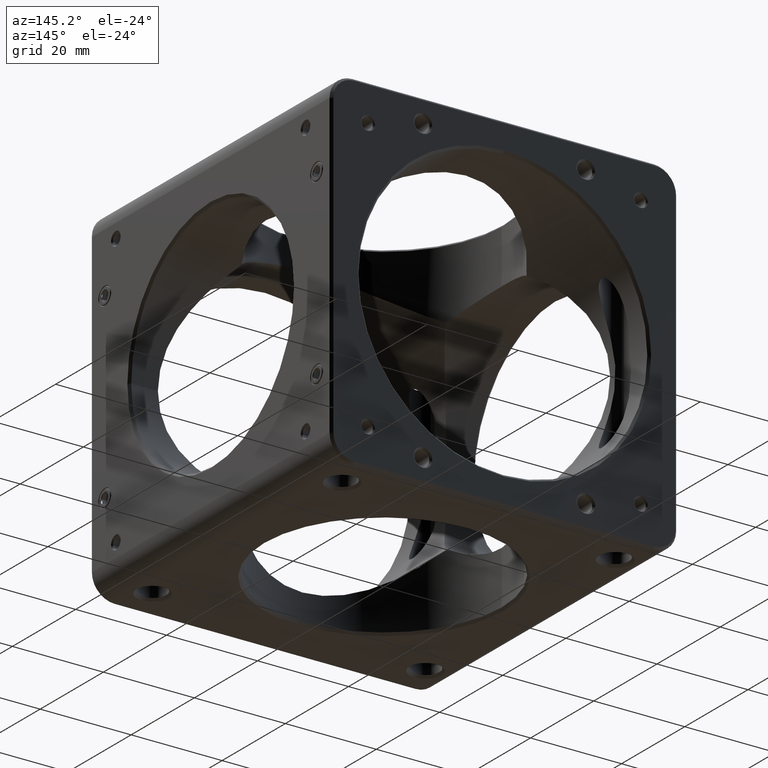
[diagram: clean part render]
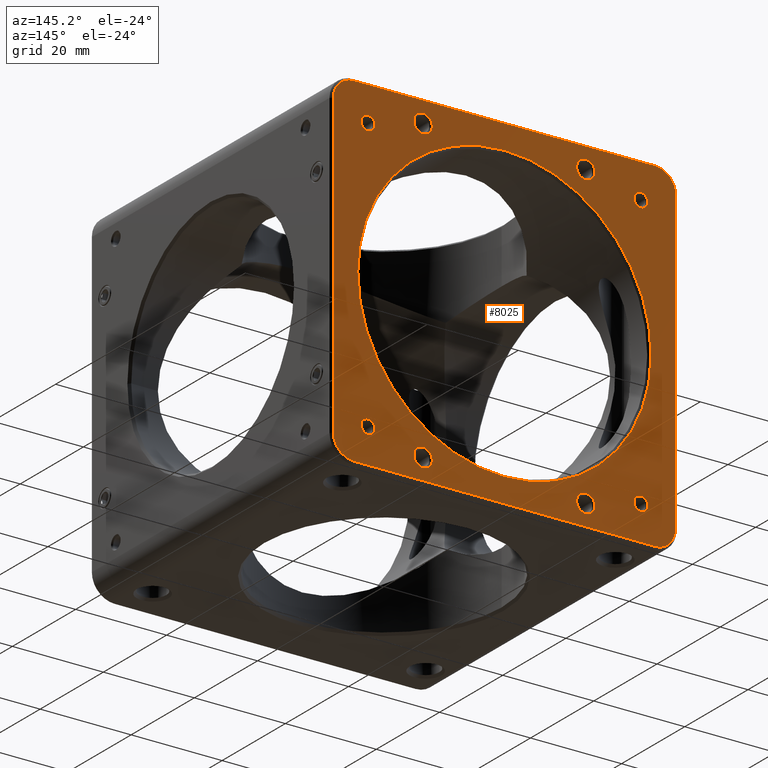
[diagram: same view with one face highlighted and labeled with its STEP entity id]
A machine part, auxiliary view. The second image highlights one B-rep face of the part: STEP entity #8025.
In plain terms, the highlighted planar face has unit normal (0, -1, 0).
Its self-contained STEP definition (entity closure, byte-faithful):
#117 = ORIENTED_EDGE ( 'NONE', *, *, #3140, .T. ) ;
#148 = CIRCLE ( 'NONE', #11900, 2.024999999999999023 ) ;
#151 = FACE_OUTER_BOUND ( 'NONE', #9998, .T. ) ;
#169 = CARTESIAN_POINT ( 'NONE',  ( -37.60000000000002274, 38.09999999999999432, 33.10000000000000142 ) ) ;
#219 = ORIENTED_EDGE ( 'NONE', *, *, #5787, .F. ) ;
#236 = DIRECTION ( 'NONE',  ( -0.0000000000000000000, 1.000000000000000000, -0.0000000000000000000 ) ) ;
#307 = FACE_BOUND ( 'NONE', #10692, .T. ) ;
#358 = EDGE_LOOP ( 'NONE', ( #10516, #8363 ) ) ;
#529 = EDGE_LOOP ( 'NONE', ( #219, #6433 ) ) ;
#550 = DIRECTION ( 'NONE',  ( -0.0000000000000000000, 1.000000000000000000, -0.0000000000000000000 ) ) ;
#597 = CARTESIAN_POINT ( 'NONE',  ( -33.10000000000000853, 38.09999999999999432, -33.10000000000000853 ) ) ;
#631 = DIRECTION ( 'NONE',  ( 0.0000000000000000000, 0.0000000000000000000, -1.000000000000000000 ) ) ;
#665 = EDGE_CURVE ( 'NONE', #3096, #7259, #2169, .T. ) ;
#700 = CARTESIAN_POINT ( 'NONE',  ( 33.09999999999999432, 38.09999999999999432, 33.10000000000000142 ) ) ;
#751 = FACE_BOUND ( 'NONE', #10626, .T. ) ;
#958 = ORIENTED_EDGE ( 'NONE', *, *, #7871, .F. ) ;
#971 = CIRCLE ( 'NONE', #1337, 1.525000000000002132 ) ;
#1030 = AXIS2_PLACEMENT_3D ( 'NONE', #8565, #1103, #9710 ) ;
#1103 = DIRECTION ( 'NONE',  ( -0.0000000000000000000, 1.000000000000000000, -0.0000000000000000000 ) ) ;
#1172 = EDGE_CURVE ( 'NONE', #9397, #4729, #10984, .T. ) ;
#1177 = DIRECTION ( 'NONE',  ( 0.0000000000000000000, 0.0000000000000000000, 1.000000000000000000 ) ) ;
#1294 = CARTESIAN_POINT ( 'NONE',  ( 33.09999999999999432, 38.09999999999999432, -37.60000000000002984 ) ) ;
#1337 = AXIS2_PLACEMENT_3D ( 'NONE', #2266, #236, #7762 ) ;
#1421 = DIRECTION ( 'NONE',  ( 0.0000000000000000000, -0.0000000000000000000, -1.000000000000000000 ) ) ;
#1431 = DIRECTION ( 'NONE',  ( -0.0000000000000000000, 1.000000000000000000, -0.0000000000000000000 ) ) ;
#1467 = DIRECTION ( 'NONE',  ( -0.0000000000000000000, 1.000000000000000000, -0.0000000000000000000 ) ) ;
#1497 = VERTEX_POINT ( 'NONE', #5947 ) ;
#1531 = DIRECTION ( 'NONE',  ( 0.0000000000000000000, 0.0000000000000000000, 1.000000000000000000 ) ) ;
#1572 = DIRECTION ( 'NONE',  ( -0.0000000000000000000, 1.000000000000000000, -0.0000000000000000000 ) ) ;
#1574 = CARTESIAN_POINT ( 'NONE',  ( -17.89999999999999503, 38.09999999999999432, -30.97500000000000142 ) ) ;
#1695 = DIRECTION ( 'NONE',  ( 0.0000000000000000000, 0.0000000000000000000, -1.000000000000000000 ) ) ;
#1711 = VERTEX_POINT ( 'NONE', #11321 ) ;
#1744 = VERTEX_POINT ( 'NONE', #7501 ) ;
#1900 = EDGE_CURVE ( 'NONE', #5807, #10269, #11570, .T. ) ;
#1917 = EDGE_CURVE ( 'NONE', #4729, #11224, #9063, .T. ) ;
#1941 = CIRCLE ( 'NONE', #7132, 2.024999999999999023 ) ;
#2009 = ORIENTED_EDGE ( 'NONE', *, *, #4751, .F. ) ;
#2139 = CARTESIAN_POINT ( 'NONE',  ( -30.00000000000013500, 38.09999999999988773, -31.52499999999999858 ) ) ;
#2169 = CIRCLE ( 'NONE', #3850, 1.524999999999998579 ) ;
#2176 = EDGE_CURVE ( 'NONE', #1497, #8735, #6208, .T. ) ;
#2248 = DIRECTION ( 'NONE',  ( 0.0000000000000000000, 0.0000000000000000000, 1.000000000000000000 ) ) ;
#2266 = CARTESIAN_POINT ( 'NONE',  ( -30.00000000000013500, 38.09999999999988773, 29.99999999999999645 ) ) ;
#2309 = CARTESIAN_POINT ( 'NONE',  ( 0.0000000000000000000, 38.09999999999999432, 6.938893903907228378E-15 ) ) ;
#2380 = DIRECTION ( 'NONE',  ( 0.0000000000000000000, 0.0000000000000000000, 1.000000000000000000 ) ) ;
#2567 = ORIENTED_EDGE ( 'NONE', *, *, #1900, .T. ) ;
#2594 = AXIS2_PLACEMENT_3D ( 'NONE', #2309, #3287, #8866 ) ;
#2638 = ORIENTED_EDGE ( 'NONE', *, *, #8445, .F. ) ;
#2642 = CIRCLE ( 'NONE', #9179, 4.500000000000024869 ) ;
#2643 = CARTESIAN_POINT ( 'NONE',  ( 0.0000000000000000000, 38.09999999999999432, 6.938893903907228378E-15 ) ) ;
#2896 = VECTOR ( 'NONE', #9607, 1000.000000000000000 ) ;
#2909 = AXIS2_PLACEMENT_3D ( 'NONE', #4348, #10993, #631 ) ;
#2938 = AXIS2_PLACEMENT_3D ( 'NONE', #7741, #8475, #2995 ) ;
#2961 = DIRECTION ( 'NONE',  ( -0.0000000000000000000, 1.000000000000000000, -0.0000000000000000000 ) ) ;
#2995 = DIRECTION ( 'NONE',  ( 0.0000000000000000000, 0.0000000000000000000, -1.000000000000000000 ) ) ;
#3089 = ORIENTED_EDGE ( 'NONE', *, *, #7173, .F. ) ;
#3096 = VERTEX_POINT ( 'NONE', #2139 ) ;
#3100 = EDGE_CURVE ( 'NONE', #9325, #8577, #971, .T. ) ;
#3110 = CARTESIAN_POINT ( 'NONE',  ( 17.90000000000000213, 38.09999999999999432, 30.97500000000000142 ) ) ;
#3140 = EDGE_CURVE ( 'NONE', #4917, #6473, #8171, .T. ) ;
#3287 = DIRECTION ( 'NONE',  ( 0.0000000000000000000, -1.000000000000000000, 0.0000000000000000000 ) ) ;
#3294 = VERTEX_POINT ( 'NONE', #8164 ) ;
#3310 = CARTESIAN_POINT ( 'NONE',  ( -30.00000000000013500, 38.09999999999988773, 29.99999999999999645 ) ) ;
#3341 = DIRECTION ( 'NONE',  ( 0.0000000000000000000, -1.000000000000000000, 0.0000000000000000000 ) ) ;
#3380 = AXIS2_PLACEMENT_3D ( 'NONE', #11806, #3341, #1421 ) ;
#3397 = VERTEX_POINT ( 'NONE', #1574 ) ;
#3451 = VERTEX_POINT ( 'NONE', #8487 ) ;
#3500 = CARTESIAN_POINT ( 'NONE',  ( -30.00000000000013500, 38.09999999999988773, -28.47500000000000497 ) ) ;
#3511 = AXIS2_PLACEMENT_3D ( 'NONE', #10005, #1431, #2380 ) ;
#3556 = CARTESIAN_POINT ( 'NONE',  ( 0.0000000000000000000, 38.09999999999999432, 32.25000000000007105 ) ) ;
#3850 = AXIS2_PLACEMENT_3D ( 'NONE', #7705, #2961, #1177 ) ;
#3977 = EDGE_CURVE ( 'NONE', #3294, #8947, #10209, .T. ) ;
#4146 = CARTESIAN_POINT ( 'NONE',  ( 29.99999999999985079, 38.10000000000011511, -30.00000000000001066 ) ) ;
#4160 = ORIENTED_EDGE ( 'NONE', *, *, #3977, .F. ) ;
#4164 = FACE_BOUND ( 'NONE', #11625, .T. ) ;
#4185 = ORIENTED_EDGE ( 'NONE', *, *, #5539, .T. ) ;
#4235 = DIRECTION ( 'NONE',  ( -0.0000000000000000000, 1.000000000000000000, -0.0000000000000000000 ) ) ;
#4251 = DIRECTION ( 'NONE',  ( -0.0000000000000000000, 1.000000000000000000, -0.0000000000000000000 ) ) ;
#4291 = EDGE_CURVE ( 'NONE', #1711, #8426, #8729, .T. ) ;
#4326 = CIRCLE ( 'NONE', #1030, 1.525000000000005462 ) ;
#4348 = CARTESIAN_POINT ( 'NONE',  ( 33.09999999999999432, 38.09999999999999432, -33.10000000000000853 ) ) ;
#4390 = DIRECTION ( 'NONE',  ( 0.0000000000000000000, 0.0000000000000000000, 1.000000000000000000 ) ) ;
#4659 = DIRECTION ( 'NONE',  ( 0.0000000000000000000, -1.000000000000000000, 0.0000000000000000000 ) ) ;
#4722 = DIRECTION ( 'NONE',  ( -1.000000000000000000, 0.0000000000000000000, 0.0000000000000000000 ) ) ;
#4729 = VERTEX_POINT ( 'NONE', #5442 ) ;
#4751 = EDGE_CURVE ( 'NONE', #3451, #3397, #11090, .T. ) ;
#4778 = DIRECTION ( 'NONE',  ( 0.0000000000000000000, 0.0000000000000000000, 1.000000000000000000 ) ) ;
#4801 = ORIENTED_EDGE ( 'NONE', *, *, #6846, .F. ) ;
#4832 = ORIENTED_EDGE ( 'NONE', *, *, #7098, .F. ) ;
#4917 = VERTEX_POINT ( 'NONE', #9526 ) ;
#5041 = FACE_BOUND ( 'NONE', #358, .T. ) ;
#5044 = CARTESIAN_POINT ( 'NONE',  ( 17.90000000000000213, 38.09999999999999432, 33.00000000000000000 ) ) ;
#5087 = DIRECTION ( 'NONE',  ( -0.0000000000000000000, 1.000000000000000000, -0.0000000000000000000 ) ) ;
#5220 = VERTEX_POINT ( 'NONE', #6237 ) ;
#5286 = CIRCLE ( 'NONE', #9751, 32.25000000000006395 ) ;
#5292 = DIRECTION ( 'NONE',  ( -0.0000000000000000000, 1.000000000000000000, -0.0000000000000000000 ) ) ;
#5349 = ORIENTED_EDGE ( 'NONE', *, *, #7972, .F. ) ;
#5360 = VECTOR ( 'NONE', #2248, 1000.000000000000000 ) ;
#5383 = CARTESIAN_POINT ( 'NONE',  ( -17.89999999999999858, 38.09999999999999432, 30.97500000000000142 ) ) ;
#5384 = EDGE_CURVE ( 'NONE', #6471, #1497, #6072, .T. ) ;
#5442 = CARTESIAN_POINT ( 'NONE',  ( 37.60000000000002274, 38.09999999999999432, -33.10000000000000853 ) ) ;
#5446 = ORIENTED_EDGE ( 'NONE', *, *, #5935, .F. ) ;
#5463 = DIRECTION ( 'NONE',  ( 0.0000000000000000000, 0.0000000000000000000, 1.000000000000000000 ) ) ;
#5508 = CARTESIAN_POINT ( 'NONE',  ( 33.09999999999999432, 38.09999999999999432, 37.60000000000002984 ) ) ;
#5539 = EDGE_CURVE ( 'NONE', #10269, #6471, #11225, .T. ) ;
#5584 = ORIENTED_EDGE ( 'NONE', *, *, #7635, .T. ) ;
#5725 = DIRECTION ( 'NONE',  ( 0.0000000000000000000, 0.0000000000000000000, 1.000000000000000000 ) ) ;
#5786 = CIRCLE ( 'NONE', #10077, 1.525000000000002132 ) ;
#5787 = EDGE_CURVE ( 'NONE', #8426, #1711, #5786, .T. ) ;
#5797 = AXIS2_PLACEMENT_3D ( 'NONE', #11794, #1572, #6168 ) ;
#5807 = VERTEX_POINT ( 'NONE', #11299 ) ;
#5921 = CARTESIAN_POINT ( 'NONE',  ( 33.09999999999998010, 38.09999999999999432, 37.60000000000001563 ) ) ;
#5935 = EDGE_CURVE ( 'NONE', #1744, #6813, #4326, .T. ) ;
#5947 = CARTESIAN_POINT ( 'NONE',  ( -33.10000000000000853, 38.09999999999999432, 37.60000000000002984 ) ) ;
#6024 = DIRECTION ( 'NONE',  ( -0.0000000000000000000, 1.000000000000000000, -0.0000000000000000000 ) ) ;
#6052 = CIRCLE ( 'NONE', #3511, 1.524999999999998579 ) ;
#6056 = FACE_BOUND ( 'NONE', #6172, .T. ) ;
#6072 = CIRCLE ( 'NONE', #2938, 4.500000000000024869 ) ;
#6168 = DIRECTION ( 'NONE',  ( 0.0000000000000000000, 0.0000000000000000000, 1.000000000000000000 ) ) ;
#6172 = EDGE_LOOP ( 'NONE', ( #6799, #5446 ) ) ;
#6207 = CARTESIAN_POINT ( 'NONE',  ( -17.89999999999999858, 38.09999999999999432, 33.00000000000000000 ) ) ;
#6208 = LINE ( 'NONE', #5921, #7809 ) ;
#6237 = CARTESIAN_POINT ( 'NONE',  ( 17.90000000000000213, 38.09999999999999432, 35.02499999999999858 ) ) ;
#6277 = DIRECTION ( 'NONE',  ( -0.0000000000000000000, 1.000000000000000000, -0.0000000000000000000 ) ) ;
#6414 = CARTESIAN_POINT ( 'NONE',  ( -37.60000000000003695, 38.09999999999999432, -33.10000000000000853 ) ) ;
#6433 = ORIENTED_EDGE ( 'NONE', *, *, #4291, .F. ) ;
#6471 = VERTEX_POINT ( 'NONE', #169 ) ;
#6473 = VERTEX_POINT ( 'NONE', #3556 ) ;
#6601 = EDGE_LOOP ( 'NONE', ( #4160, #4801 ) ) ;
#6631 = AXIS2_PLACEMENT_3D ( 'NONE', #7189, #6277, #8236 ) ;
#6638 = CIRCLE ( 'NONE', #12157, 2.024999999999999023 ) ;
#6733 = CARTESIAN_POINT ( 'NONE',  ( -30.00000000000013500, 38.09999999999988773, 28.47499999999999787 ) ) ;
#6776 = VECTOR ( 'NONE', #4722, 1000.000000000000000 ) ;
#6778 = CARTESIAN_POINT ( 'NONE',  ( 37.60000000000002274, 38.09999999999999432, 38.10000000000000142 ) ) ;
#6799 = ORIENTED_EDGE ( 'NONE', *, *, #8446, .F. ) ;
#6813 = VERTEX_POINT ( 'NONE', #11124 ) ;
#6846 = EDGE_CURVE ( 'NONE', #8947, #3294, #7808, .T. ) ;
#6905 = EDGE_CURVE ( 'NONE', #9092, #9340, #10607, .T. ) ;
#6965 = EDGE_LOOP ( 'NONE', ( #958, #5349 ) ) ;
#7008 = CARTESIAN_POINT ( 'NONE',  ( -30.00000000000013500, 38.09999999999988773, 31.52499999999999858 ) ) ;
#7098 = EDGE_CURVE ( 'NONE', #3397, #3451, #148, .T. ) ;
#7132 = AXIS2_PLACEMENT_3D ( 'NONE', #5044, #4235, #7896 ) ;
#7156 = DIRECTION ( 'NONE',  ( -0.0000000000000000000, 1.000000000000000000, -0.0000000000000000000 ) ) ;
#7173 = EDGE_CURVE ( 'NONE', #7259, #3096, #6052, .T. ) ;
#7189 = CARTESIAN_POINT ( 'NONE',  ( -17.89999999999999858, 38.09999999999999432, 33.00000000000000000 ) ) ;
#7259 = VERTEX_POINT ( 'NONE', #3500 ) ;
#7336 = CARTESIAN_POINT ( 'NONE',  ( 17.90000000000000213, 38.09999999999999432, -33.00000000000000000 ) ) ;
#7368 = FACE_BOUND ( 'NONE', #6965, .T. ) ;
#7501 = CARTESIAN_POINT ( 'NONE',  ( 29.99999999999986500, 38.10000000000011511, 28.47499999999999076 ) ) ;
#7518 = DIRECTION ( 'NONE',  ( -0.0000000000000000000, 1.000000000000000000, -0.0000000000000000000 ) ) ;
#7531 = ORIENTED_EDGE ( 'NONE', *, *, #5384, .T. ) ;
#7590 = AXIS2_PLACEMENT_3D ( 'NONE', #7336, #9182, #5463 ) ;
#7635 = EDGE_CURVE ( 'NONE', #11224, #5807, #9410, .T. ) ;
#7705 = CARTESIAN_POINT ( 'NONE',  ( -30.00000000000013500, 38.09999999999988773, -30.00000000000000355 ) ) ;
#7714 = DIRECTION ( 'NONE',  ( -0.0000000000000000000, 1.000000000000000000, -0.0000000000000000000 ) ) ;
#7741 = CARTESIAN_POINT ( 'NONE',  ( -33.10000000000000853, 38.09999999999999432, 33.10000000000000142 ) ) ;
#7762 = DIRECTION ( 'NONE',  ( 0.0000000000000000000, 0.0000000000000000000, 1.000000000000000000 ) ) ;
#7774 = AXIS2_PLACEMENT_3D ( 'NONE', #597, #1467, #10952 ) ;
#7797 = ORIENTED_EDGE ( 'NONE', *, *, #1917, .T. ) ;
#7808 = CIRCLE ( 'NONE', #7590, 2.024999999999999023 ) ;
#7809 = VECTOR ( 'NONE', #11589, 1000.000000000000000 ) ;
#7871 = EDGE_CURVE ( 'NONE', #5220, #9895, #1941, .T. ) ;
#7896 = DIRECTION ( 'NONE',  ( 0.0000000000000000000, 0.0000000000000000000, 1.000000000000000000 ) ) ;
#7972 = EDGE_CURVE ( 'NONE', #9895, #5220, #6638, .T. ) ;
#8025 = ADVANCED_FACE ( 'NONE', ( #307, #151, #5041, #9565, #8242, #6056, #751, #9879, #7368, #4164 ), #9919, .F. ) ;
#8164 = CARTESIAN_POINT ( 'NONE',  ( 17.90000000000000213, 38.09999999999999432, -30.97500000000000142 ) ) ;
#8171 = CIRCLE ( 'NONE', #2594, 32.25000000000006395 ) ;
#8175 = AXIS2_PLACEMENT_3D ( 'NONE', #3310, #11732, #9726 ) ;
#8231 = CIRCLE ( 'NONE', #8294, 2.024999999999999023 ) ;
#8236 = DIRECTION ( 'NONE',  ( 0.0000000000000000000, 0.0000000000000000000, 1.000000000000000000 ) ) ;
#8242 = FACE_BOUND ( 'NONE', #529, .T. ) ;
#8294 = AXIS2_PLACEMENT_3D ( 'NONE', #6207, #7156, #1531 ) ;
#8363 = ORIENTED_EDGE ( 'NONE', *, *, #11912, .F. ) ;
#8426 = VERTEX_POINT ( 'NONE', #9032 ) ;
#8445 = EDGE_CURVE ( 'NONE', #9340, #9092, #8231, .T. ) ;
#8446 = EDGE_CURVE ( 'NONE', #6813, #1744, #11477, .T. ) ;
#8475 = DIRECTION ( 'NONE',  ( -0.0000000000000000000, 1.000000000000000000, -0.0000000000000000000 ) ) ;
#8487 = CARTESIAN_POINT ( 'NONE',  ( -17.89999999999999503, 38.09999999999999432, -35.02499999999999858 ) ) ;
#8565 = CARTESIAN_POINT ( 'NONE',  ( 29.99999999999986500, 38.10000000000011511, 29.99999999999999289 ) ) ;
#8577 = VERTEX_POINT ( 'NONE', #6733 ) ;
#8729 = CIRCLE ( 'NONE', #10876, 1.525000000000002132 ) ;
#8735 = VERTEX_POINT ( 'NONE', #5508 ) ;
#8791 = EDGE_LOOP ( 'NONE', ( #3089, #11296 ) ) ;
#8839 = CARTESIAN_POINT ( 'NONE',  ( -17.89999999999999858, 38.09999999999999432, 35.02499999999999858 ) ) ;
#8866 = DIRECTION ( 'NONE',  ( 0.0000000000000000000, 0.0000000000000000000, -1.000000000000000000 ) ) ;
#8947 = VERTEX_POINT ( 'NONE', #11697 ) ;
#8969 = DIRECTION ( 'NONE',  ( 0.0000000000000000000, 0.0000000000000000000, 1.000000000000000000 ) ) ;
#9032 = CARTESIAN_POINT ( 'NONE',  ( 29.99999999999985079, 38.10000000000011511, -28.47500000000000853 ) ) ;
#9063 = CIRCLE ( 'NONE', #2909, 4.500000000000024869 ) ;
#9092 = VERTEX_POINT ( 'NONE', #5383 ) ;
#9179 = AXIS2_PLACEMENT_3D ( 'NONE', #700, #550, #11837 ) ;
#9182 = DIRECTION ( 'NONE',  ( -0.0000000000000000000, 1.000000000000000000, -0.0000000000000000000 ) ) ;
#9325 = VERTEX_POINT ( 'NONE', #7008 ) ;
#9340 = VERTEX_POINT ( 'NONE', #8839 ) ;
#9397 = VERTEX_POINT ( 'NONE', #9631 ) ;
#9410 = LINE ( 'NONE', #12181, #6776 ) ;
#9480 = ORIENTED_EDGE ( 'NONE', *, *, #10104, .T. ) ;
#9526 = CARTESIAN_POINT ( 'NONE',  ( 3.949485927250221150E-15, 38.09999999999999432, -32.25000000000005684 ) ) ;
#9565 = FACE_BOUND ( 'NONE', #8791, .T. ) ;
#9607 = DIRECTION ( 'NONE',  ( 0.0000000000000000000, 0.0000000000000000000, -1.000000000000000000 ) ) ;
#9631 = CARTESIAN_POINT ( 'NONE',  ( 37.60000000000002274, 38.09999999999999432, 33.10000000000000142 ) ) ;
#9649 = CIRCLE ( 'NONE', #8175, 1.525000000000002132 ) ;
#9687 = AXIS2_PLACEMENT_3D ( 'NONE', #11264, #7518, #5725 ) ;
#9710 = DIRECTION ( 'NONE',  ( 0.0000000000000000000, 0.0000000000000000000, 1.000000000000000000 ) ) ;
#9726 = DIRECTION ( 'NONE',  ( 0.0000000000000000000, 0.0000000000000000000, 1.000000000000000000 ) ) ;
#9751 = AXIS2_PLACEMENT_3D ( 'NONE', #2643, #4659, #1695 ) ;
#9803 = DIRECTION ( 'NONE',  ( 0.0000000000000000000, 0.0000000000000000000, 1.000000000000000000 ) ) ;
#9810 = CARTESIAN_POINT ( 'NONE',  ( 17.90000000000000213, 38.09999999999999432, -33.00000000000000000 ) ) ;
#9879 = FACE_BOUND ( 'NONE', #6601, .T. ) ;
#9895 = VERTEX_POINT ( 'NONE', #3110 ) ;
#9919 = PLANE ( 'NONE',  #3380 ) ;
#9998 = EDGE_LOOP ( 'NONE', ( #7531, #11079, #9480, #12012, #7797, #5584, #2567, #4185 ) ) ;
#10005 = CARTESIAN_POINT ( 'NONE',  ( -30.00000000000013500, 38.09999999999988773, -30.00000000000000355 ) ) ;
#10031 = CARTESIAN_POINT ( 'NONE',  ( 17.90000000000000213, 38.09999999999999432, 33.00000000000000000 ) ) ;
#10077 = AXIS2_PLACEMENT_3D ( 'NONE', #10504, #7714, #4778 ) ;
#10104 = EDGE_CURVE ( 'NONE', #8735, #9397, #2642, .T. ) ;
#10209 = CIRCLE ( 'NONE', #10223, 2.024999999999999023 ) ;
#10223 = AXIS2_PLACEMENT_3D ( 'NONE', #9810, #4251, #11618 ) ;
#10269 = VERTEX_POINT ( 'NONE', #6414 ) ;
#10504 = CARTESIAN_POINT ( 'NONE',  ( 29.99999999999985079, 38.10000000000011511, -30.00000000000001066 ) ) ;
#10516 = ORIENTED_EDGE ( 'NONE', *, *, #3100, .F. ) ;
#10607 = CIRCLE ( 'NONE', #6631, 2.024999999999999023 ) ;
#10626 = EDGE_LOOP ( 'NONE', ( #4832, #2009 ) ) ;
#10692 = EDGE_LOOP ( 'NONE', ( #11404, #117 ) ) ;
#10876 = AXIS2_PLACEMENT_3D ( 'NONE', #4146, #5087, #8969 ) ;
#10952 = DIRECTION ( 'NONE',  ( 0.0000000000000000000, 0.0000000000000000000, -1.000000000000000000 ) ) ;
#10984 = LINE ( 'NONE', #6778, #2896 ) ;
#10993 = DIRECTION ( 'NONE',  ( -0.0000000000000000000, 1.000000000000000000, -0.0000000000000000000 ) ) ;
#11079 = ORIENTED_EDGE ( 'NONE', *, *, #2176, .T. ) ;
#11090 = CIRCLE ( 'NONE', #9687, 2.024999999999999023 ) ;
#11124 = CARTESIAN_POINT ( 'NONE',  ( 29.99999999999986500, 38.10000000000011511, 31.52499999999999858 ) ) ;
#11224 = VERTEX_POINT ( 'NONE', #1294 ) ;
#11225 = LINE ( 'NONE', #11567, #5360 ) ;
#11264 = CARTESIAN_POINT ( 'NONE',  ( -17.89999999999999503, 38.09999999999999432, -33.00000000000000000 ) ) ;
#11289 = EDGE_CURVE ( 'NONE', #6473, #4917, #5286, .T. ) ;
#11296 = ORIENTED_EDGE ( 'NONE', *, *, #665, .F. ) ;
#11299 = CARTESIAN_POINT ( 'NONE',  ( -33.10000000000000853, 38.09999999999999432, -37.60000000000002984 ) ) ;
#11321 = CARTESIAN_POINT ( 'NONE',  ( 29.99999999999985079, 38.10000000000011511, -31.52500000000001279 ) ) ;
#11404 = ORIENTED_EDGE ( 'NONE', *, *, #11289, .T. ) ;
#11477 = CIRCLE ( 'NONE', #5797, 1.525000000000005462 ) ;
#11567 = CARTESIAN_POINT ( 'NONE',  ( -37.60000000000002274, 38.09999999999999432, 38.10000000000000142 ) ) ;
#11568 = CARTESIAN_POINT ( 'NONE',  ( -17.89999999999999503, 38.09999999999999432, -33.00000000000000000 ) ) ;
#11570 = CIRCLE ( 'NONE', #7774, 4.500000000000024869 ) ;
#11589 = DIRECTION ( 'NONE',  ( 1.000000000000000000, 0.0000000000000000000, 0.0000000000000000000 ) ) ;
#11613 = ORIENTED_EDGE ( 'NONE', *, *, #6905, .F. ) ;
#11618 = DIRECTION ( 'NONE',  ( 0.0000000000000000000, 0.0000000000000000000, 1.000000000000000000 ) ) ;
#11625 = EDGE_LOOP ( 'NONE', ( #2638, #11613 ) ) ;
#11697 = CARTESIAN_POINT ( 'NONE',  ( 17.90000000000000213, 38.09999999999999432, -35.02499999999999858 ) ) ;
#11732 = DIRECTION ( 'NONE',  ( -0.0000000000000000000, 1.000000000000000000, -0.0000000000000000000 ) ) ;
#11794 = CARTESIAN_POINT ( 'NONE',  ( 29.99999999999986500, 38.10000000000011511, 29.99999999999999289 ) ) ;
#11806 = CARTESIAN_POINT ( 'NONE',  ( -38.10000000000000853, 38.09999999999999432, 38.10000000000000142 ) ) ;
#11837 = DIRECTION ( 'NONE',  ( 0.0000000000000000000, 0.0000000000000000000, -1.000000000000000000 ) ) ;
#11900 = AXIS2_PLACEMENT_3D ( 'NONE', #11568, #6024, #9803 ) ;
#11912 = EDGE_CURVE ( 'NONE', #8577, #9325, #9649, .T. ) ;
#12012 = ORIENTED_EDGE ( 'NONE', *, *, #1172, .T. ) ;
#12157 = AXIS2_PLACEMENT_3D ( 'NONE', #10031, #5292, #4390 ) ;
#12181 = CARTESIAN_POINT ( 'NONE',  ( -38.10000000000000853, 38.09999999999999432, -37.60000000000002984 ) ) ;